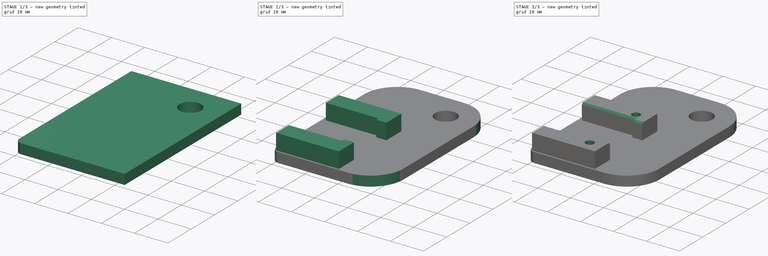
[diagram: build sequence overview — one tinted view per stage of 3, left to right]
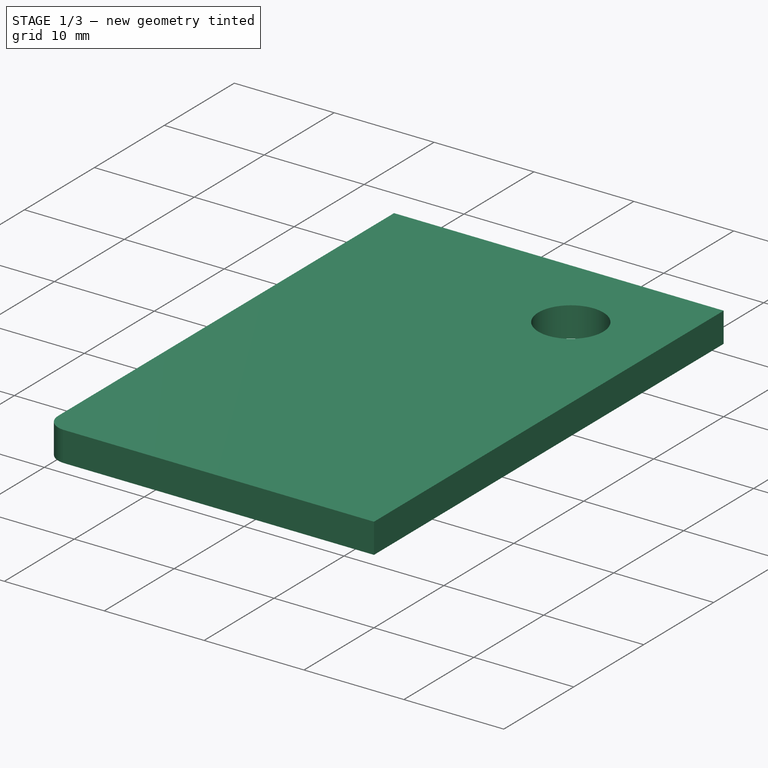
[diagram: stage 1 of 3 — iso view after this stage's code; geometry added in this stage tinted green]
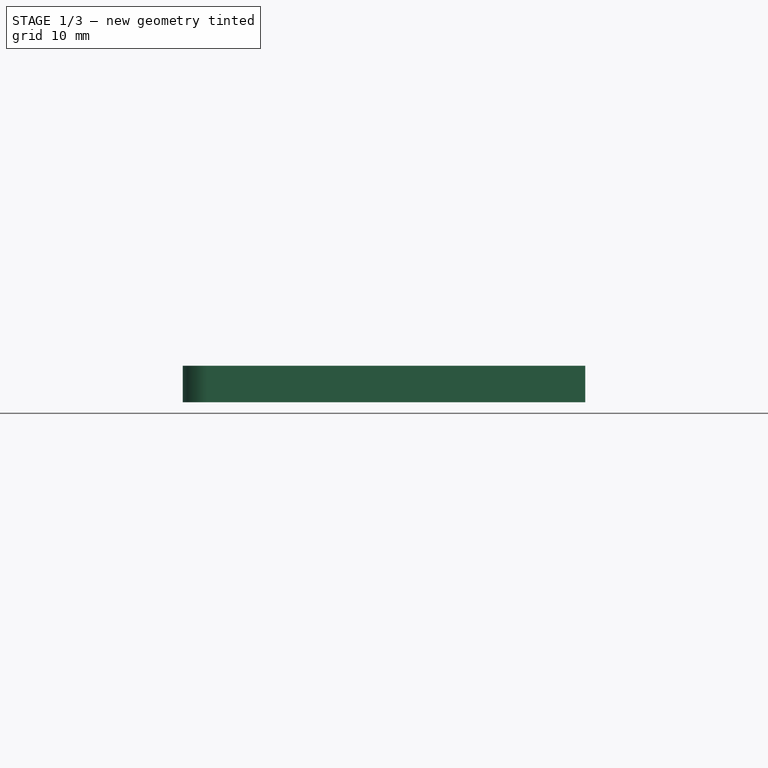
[diagram: stage 1 of 3 — front view after this stage's code; geometry added in this stage tinted green]
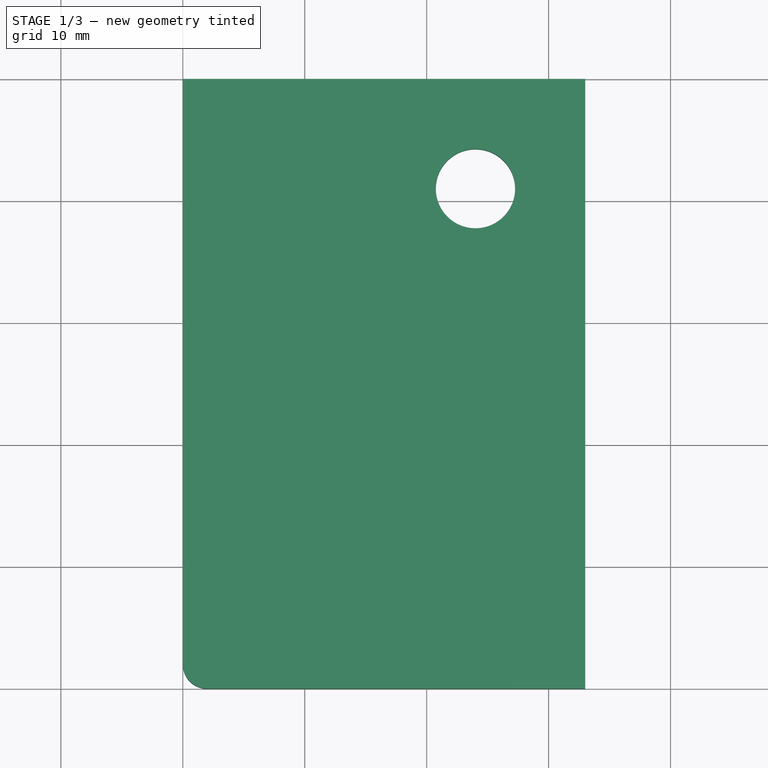
[diagram: stage 1 of 3 — top view after this stage's code; geometry added in this stage tinted green]
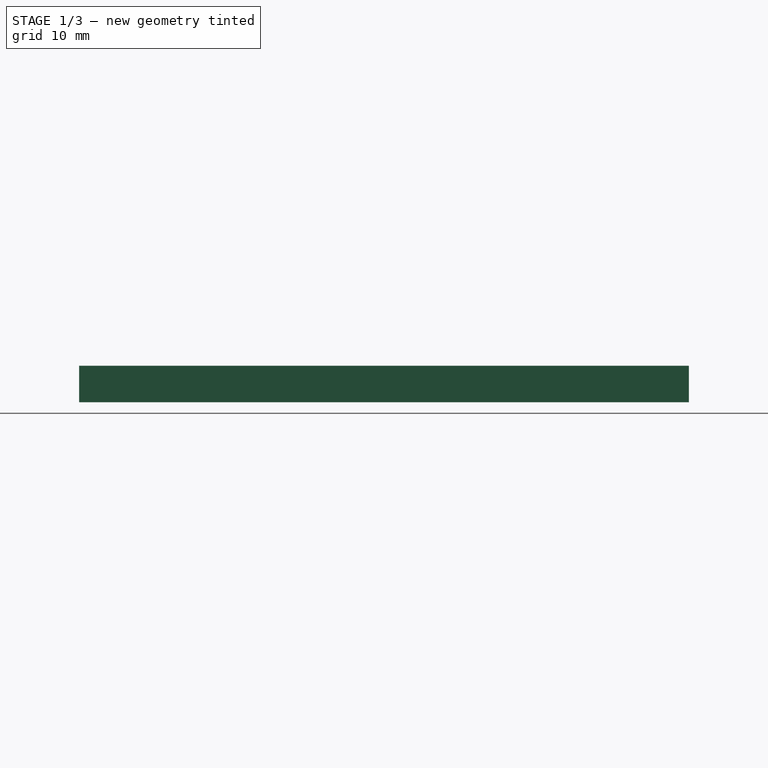
[diagram: stage 1 of 3 — right view after this stage's code; geometry added in this stage tinted green]
FCSTD DOCUMENT  (FreeCAD 0.19R24276 (Git))
Label: HU-6_holder
License: All rights reserved
LicenseURL: http://en.wikipedia.org/wiki/All_rights_reserved
objects: Sketcher::SketchObject×3, PartDesign::Pad×2, PartDesign::Fillet×2, PartDesign::Pocket×1, PartDesign::Chamfer×1, PartDesign::Body×1
note: 16 computed .brp shape members not serialized (recipe doc carries the construction recipe); baked Part::Feature solids carry a one-line shape summary decoded from their .brp

FEATURE [Sketcher::SketchObject] Sketch
  FullyConstrained = false
  MapMode = 5
  Support = -> [XY_Plane]
  sketch-geometry (38):
    g0: LineSegment StartX=0 StartY=0 StartZ=0 EndX=33 EndY=0 EndZ=0
    g1: LineSegment StartX=33 StartY=0 StartZ=0 EndX=33 EndY=50 EndZ=0
    g2: LineSegment StartX=33 StartY=50 StartZ=0 EndX=0 EndY=50 EndZ=0
    g3: LineSegment StartX=0 StartY=50 StartZ=0 EndX=0 EndY=0 EndZ=0
    g4: Circle CenterX=24 CenterY=41 CenterZ=0 NormalX=0 NormalY=0 NormalZ=1 AngleXU=0 Radius=3.25
    g5: LineSegment StartX=4 StartY=22 StartZ=0 EndX=17 EndY=22 EndZ=0
    g6: LineSegment StartX=17 StartY=22 StartZ=0 EndX=17 EndY=6 EndZ=0
    g7: LineSegment StartX=17 StartY=6 StartZ=0 EndX=4 EndY=6 EndZ=0
    g8: LineSegment StartX=4 StartY=6 StartZ=0 EndX=4 EndY=22 EndZ=0
    g9: LineSegment StartX=4 StartY=22 StartZ=0 EndX=1 EndY=22 EndZ=0
    g10: LineSegment StartX=1 StartY=22 StartZ=0 EndX=1 EndY=6 EndZ=0
    g11: LineSegment StartX=1 StartY=6 StartZ=0 EndX=4 EndY=6 EndZ=0
    g12: LineSegment StartX=4 StartY=6 StartZ=0 EndX=4 EndY=22 EndZ=0
    g13: LineSegment StartX=17 StartY=22 StartZ=0 EndX=1 EndY=22 EndZ=0
    g14: LineSegment StartX=1 StartY=22 StartZ=0 EndX=1 EndY=27.2518 EndZ=0
    g15: LineSegment StartX=1 StartY=27.2518 StartZ=0 EndX=17 EndY=27.2518 EndZ=0
    g16: LineSegment StartX=17 StartY=27.2518 StartZ=0 EndX=17 EndY=22 EndZ=0
    g17: LineSegment StartX=1 StartY=6 StartZ=0 EndX=17 EndY=6 EndZ=0
    g18: LineSegment StartX=17 StartY=6 StartZ=0 EndX=17 EndY=0.748163 EndZ=0
    g19: LineSegment StartX=17 StartY=0.748163 StartZ=0 EndX=1 EndY=0.748163 EndZ=0
    g20: LineSegment StartX=1 StartY=0.748163 StartZ=0 EndX=1 EndY=6 EndZ=0
    g21: LineSegment StartX=17 StartY=22 StartZ=0 EndX=12.5 EndY=22 EndZ=0
    g22: LineSegment StartX=12.5 StartY=22 StartZ=0 EndX=12.5 EndY=6 EndZ=0
    g23: LineSegment StartX=12.5 StartY=6 StartZ=0 EndX=17 EndY=6 EndZ=0
    g24: LineSegment StartX=17 StartY=6 StartZ=0 EndX=17 EndY=22 EndZ=0
    g25: Circle CenterX=16 CenterY=24 CenterZ=0 NormalX=0 NormalY=0 NormalZ=1 AngleXU=0 Radius=1.25
    g26: Circle CenterX=16 CenterY=4 CenterZ=0 NormalX=0 NormalY=0 NormalZ=1 AngleXU=0 Radius=1.25
    g27: Circle CenterX=16 CenterY=24 CenterZ=0 NormalX=0 NormalY=0 NormalZ=1 AngleXU=0 Radius=3.5
    g28: Circle CenterX=16 CenterY=4 CenterZ=0 NormalX=0 NormalY=0 NormalZ=1 AngleXU=0 Radius=3.5
    g29: LineSegment StartX=17 StartY=22 StartZ=0 EndX=20 EndY=22 EndZ=0
    g30: LineSegment StartX=20 StartY=22 StartZ=0 EndX=20 EndY=27.2518 EndZ=0
    g31: LineSegment StartX=20 StartY=27.2518 StartZ=0 EndX=17 EndY=27.2518 EndZ=0
    g32: LineSegment StartX=17 StartY=27.2518 StartZ=0 EndX=17 EndY=22 EndZ=0
    g33: LineSegment StartX=17 StartY=0.748163 StartZ=0 EndX=20 EndY=0.748163 EndZ=0
    g34: LineSegment StartX=20 StartY=0.748163 StartZ=0 EndX=20 EndY=6 EndZ=0
    g35: LineSegment StartX=20 StartY=6 StartZ=0 EndX=17 EndY=6 EndZ=0
    g36: LineSegment StartX=17 StartY=6 StartZ=0 EndX=17 EndY=0.748163 EndZ=0
    g37: Circle CenterX=24 CenterY=41 CenterZ=0 NormalX=0 NormalY=0 NormalZ=1 AngleXU=0 Radius=9
  constraints (103):
    c: Coincident(g0,g1)
    c: Coincident(g1,g2)
    c: Coincident(g2,g3)
    c: Coincident(g3,g0)
    c: Horizontal(g0)
    c: Horizontal(g2)
    c: Vertical(g1)
    c: Vertical(g3)
    c: Coincident(g0,g-1)
    c: Coincident(g5,g6)
    c: Coincident(g6,g7)
    c: Coincident(g7,g8)
    c: Coincident(g8,g5)
    c: Horizontal(g5)
    c: Horizontal(g7)
    c: Vertical(g6)
    c: Vertical(g8)
    c: DistanceY(g6,g6) = 16
    c: DistanceX(g7,g7) = 13
    c: DistanceY(g6,g4) = 35
    c: DistanceX(g6,g4) = 7
    c: Coincident(g9,g10)
    c: Coincident(g10,g11)
    c: Coincident(g11,g12)
    c: Coincident(g12,g9)
    c: Horizontal(g9)
    c: Horizontal(g11)
    c: Vertical(g10)
    c: Vertical(g12)
    c: Coincident(g9,g5)
    c: Horizontal(g10,g7)
    c: DistanceX(g9,g9) = 3
    c: Coincident(g13,g14)
    c: Coincident(g14,g15)
    c: Coincident(g15,g16)
    c: Coincident(g16,g13)
    c: Horizontal(g13)
    c: Horizontal(g15)
    c: Vertical(g14)
    c: Vertical(g16)
    c: Coincident(g13,g5)
    c: Vertical(g13,g9)
    c: Coincident(g17,g18)
    c: Coincident(g18,g19)
    c: Coincident(g19,g20)
    c: Coincident(g20,g17)
    c: Horizontal(g17)
    c: Horizontal(g19)
    c: Vertical(g18)
    c: Vertical(g20)
    c: Coincident(g17,g10)
    c: Vertical(g17,g6)
    c: Coincident(g21,g22)
    c: Coincident(g22,g23)
    c: Coincident(g23,g24)
    c: Coincident(g24,g21)
    c: Horizontal(g21)
    c: Horizontal(g23)
    c: Vertical(g22)
    c: Vertical(g24)
    c: Coincident(g21,g5)
    c: DistanceX(g23,g23) = 4.5
    c: Horizontal(g22,g7)
    c: Vertical(g26,g25)
    c: Diameter(g25) = 2.5
    c: Equal(g25,g26)
    c: Equal(g14,g20)
    c: Coincident(g27,g25)
    c: Diameter(g27) = 7
    c: DistanceX(g25,g5) = 1
    c: DistanceY(g5,g25) = 2
    c: DistanceY(g26,g22) = 2
    c: Coincident(g28,g26)
    c: Equal(g28,g27)
    c: Coincident(g29,g30)
    c: Coincident(g30,g31)
    c: Coincident(g31,g32)
    c: Coincident(g32,g29)
    c: Horizontal(g29)
    c: Horizontal(g31)
    c: Vertical(g30)
    c: Vertical(g32)
    c: Coincident(g29,g5)
    c: Horizontal(g31,g15)
    c: DistanceX(g31,g31) = 3
    c: Coincident(g33,g34)
    c: Coincident(g34,g35)
    c: Coincident(g35,g36)
    c: Coincident(g36,g33)
    c: Horizontal(g33)
    c: Horizontal(g35)
    c: Vertical(g34)
    c: Vertical(g36)
    c: Coincident(g33,g18)
    c: Horizontal(g34,g6)
    c: Vertical(g29,g34)
    c: Coincident(g37,g4)
    c: Diameter(g37) = 18
    c: Diameter(g4) = 6.5
    c: DistanceY(g1,g1) = 50
    c: DistanceX(g0,g0) = 33
    c: DistanceY(g4,g1) = 9
    c: DistanceX(g4,g1) = 9
FEATURE [PartDesign::Pad] Pad
  Direction = (1,1,1)
  Length = 3
  Length2 = 100
  Profile = -> Sketch
  Type = 0
FEATURE [Sketcher::SketchObject] Sketch001
  AttachmentOffset = pos=(0,0,3) rot=(0,0,1;0rad)
  FullyConstrained = false
  MapMode = 5
  Placement = pos=(0,0,3) rot=(0,0,1;0rad)
  Support = -> [XY_Plane]
  sketch-geometry (57):
    g0: LineSegment StartX=0 StartY=0 StartZ=0 EndX=33 EndY=0 EndZ=0
    g1: LineSegment StartX=33 StartY=0 StartZ=0 EndX=33 EndY=50 EndZ=0
    g2: LineSegment StartX=33 StartY=50 StartZ=0 EndX=0 EndY=50 EndZ=0
    g3: LineSegment StartX=0 StartY=50 StartZ=0 EndX=0 EndY=0 EndZ=0
    g4: Circle CenterX=24 CenterY=41 CenterZ=0 NormalX=0 NormalY=0 NormalZ=1 AngleXU=0 Radius=3.25
    g5: LineSegment StartX=4 StartY=22 StartZ=0 EndX=17 EndY=22 EndZ=0
    g6: LineSegment StartX=17 StartY=22 StartZ=0 EndX=17 EndY=6 EndZ=0
    g7: LineSegment StartX=17 StartY=6 StartZ=0 EndX=4 EndY=6 EndZ=0
    g8: LineSegment StartX=4 StartY=6 StartZ=0 EndX=4 EndY=22 EndZ=0
    g9: LineSegment StartX=4 StartY=22 StartZ=0 EndX=1 EndY=22 EndZ=0
    g10: LineSegment StartX=1 StartY=22 StartZ=0 EndX=1 EndY=6 EndZ=0
    g11: LineSegment StartX=1 StartY=6 StartZ=0 EndX=4 EndY=6 EndZ=0
    g12: LineSegment StartX=4 StartY=6 StartZ=0 EndX=4 EndY=22 EndZ=0
    g13: LineSegment StartX=17 StartY=22 StartZ=0 EndX=1 EndY=22 EndZ=0
    g14: LineSegment StartX=1 StartY=22 StartZ=0 EndX=1 EndY=27.5 EndZ=0
    g15: LineSegment StartX=1 StartY=27.5 StartZ=0 EndX=17 EndY=27.5 EndZ=0
    g16: LineSegment StartX=17 StartY=27.5 StartZ=0 EndX=17 EndY=22 EndZ=0
    g17: LineSegment StartX=1 StartY=6 StartZ=0 EndX=17 EndY=6 EndZ=0
    g18: LineSegment StartX=17 StartY=6 StartZ=0 EndX=17 EndY=0.5 EndZ=0
    g19: LineSegment StartX=17 StartY=0.5 StartZ=0 EndX=1 EndY=0.5 EndZ=0
    g20: LineSegment StartX=1 StartY=0.5 StartZ=0 EndX=1 EndY=6 EndZ=0
    g21: LineSegment StartX=17 StartY=22 StartZ=0 EndX=12.5 EndY=22 EndZ=0
    g22: LineSegment StartX=12.5 StartY=22 StartZ=0 EndX=12.5 EndY=6 EndZ=0
    g23: LineSegment StartX=12.5 StartY=6 StartZ=0 EndX=17 EndY=6 EndZ=0
    g24: LineSegment StartX=17 StartY=6 StartZ=0 EndX=17 EndY=22 EndZ=0
    g25: Circle CenterX=16 CenterY=24 CenterZ=0 NormalX=0 NormalY=0 NormalZ=1 AngleXU=0 Radius=1.25
    g26: Circle CenterX=16 CenterY=4 CenterZ=0 NormalX=0 NormalY=0 NormalZ=1 AngleXU=0 Radius=1.25
    g27: Circle CenterX=16 CenterY=24 CenterZ=0 NormalX=0 NormalY=0 NormalZ=1 AngleXU=0 Radius=3.5
    g28: Circle CenterX=16 CenterY=4 CenterZ=0 NormalX=0 NormalY=0 NormalZ=1 AngleXU=0 Radius=3.5
    g29: LineSegment StartX=17 StartY=22 StartZ=0 EndX=20 EndY=22 EndZ=0
    g30: LineSegment StartX=20 StartY=22 StartZ=0 EndX=20 EndY=27.5 EndZ=0
    g31: LineSegment StartX=20 StartY=27.5 StartZ=0 EndX=17 EndY=27.5 EndZ=0
    g32: LineSegment StartX=17 StartY=27.5 StartZ=0 EndX=17 EndY=22 EndZ=0
    g33: LineSegment StartX=17 StartY=0.5 StartZ=0 EndX=20 EndY=0.5 EndZ=0
    g34: LineSegment StartX=20 StartY=0.5 StartZ=0 EndX=20 EndY=6 EndZ=0
    g35: LineSegment StartX=20 StartY=6 StartZ=0 EndX=18.8723 EndY=6 EndZ=0
    g36: LineSegment StartX=17 StartY=6 StartZ=0 EndX=17 EndY=0.5 EndZ=0
    g37: Circle CenterX=24 CenterY=41 CenterZ=0 NormalX=0 NormalY=0 NormalZ=1 AngleXU=0 Radius=9
    g38: LineSegment StartX=1 StartY=22 StartZ=0 EndX=20 EndY=22 EndZ=0
    g39: LineSegment StartX=20 StartY=22 StartZ=0 EndX=20 EndY=27.5 EndZ=0
    g40: LineSegment StartX=20 StartY=27.5 StartZ=0 EndX=1 EndY=27.5 EndZ=0
    g41: LineSegment StartX=1 StartY=27.5 StartZ=0 EndX=1 EndY=22 EndZ=0
    g42: LineSegment StartX=1 StartY=0.5 StartZ=0 EndX=1 EndY=6 EndZ=0
    g43: LineSegment StartX=1 StartY=6 StartZ=0 EndX=17 EndY=6 EndZ=0
    g44: LineSegment StartX=20 StartY=6 StartZ=0 EndX=20 EndY=0.5 EndZ=0
    g45: LineSegment StartX=20 StartY=0.5 StartZ=0 EndX=1 EndY=0.5 EndZ=0
    g46: LineSegment StartX=20 StartY=22 StartZ=0 EndX=17 EndY=22 EndZ=0
    g47: LineSegment StartX=17 StartY=22 StartZ=0 EndX=17 EndY=21 EndZ=0
    g48: LineSegment StartX=17 StartY=21 StartZ=0 EndX=20 EndY=21 EndZ=0
    g49: LineSegment StartX=20 StartY=21 StartZ=0 EndX=20 EndY=22 EndZ=0
    g50: LineSegment StartX=20 StartY=6 StartZ=0 EndX=18.8723 EndY=6 EndZ=0
    g51: LineSegment StartX=17 StartY=6 StartZ=0 EndX=17 EndY=7 EndZ=0
    g52: LineSegment StartX=17 StartY=7 StartZ=0 EndX=20 EndY=7 EndZ=0
    g53: LineSegment StartX=20 StartY=7 StartZ=0 EndX=20 EndY=6 EndZ=0
    g54: LineSegment StartX=17 StartY=22 StartZ=0 EndX=1 EndY=22 EndZ=0
    g55: LineSegment StartX=18.8723 StartY=6 StartZ=0 EndX=20 EndY=6 EndZ=0
    g56: LineSegment StartX=17 StartY=6 StartZ=0 EndX=1 EndY=6 EndZ=0
  constraints (150):
    c: Coincident(g0,g1)
    c: Coincident(g1,g2)
    c: Coincident(g2,g3)
    c: Coincident(g3,g0)
    c: Horizontal(g0)
    c: Horizontal(g2)
    c: Vertical(g1)
    c: Vertical(g3)
    c: Coincident(g0,g-1)
    c: Coincident(g5,g6)
    c: Coincident(g6,g7)
    c: Coincident(g7,g8)
    c: Coincident(g8,g5)
    c: Horizontal(g5)
    c: Horizontal(g7)
    c: Vertical(g6)
    c: Vertical(g8)
    c: DistanceY(g6,g6) = 16
    c: DistanceX(g7,g7) = 13
    c: DistanceY(g6,g4) = 35
    c: DistanceX(g6,g4) = 7
    c: Coincident(g9,g10)
    c: Coincident(g10,g11)
    c: Coincident(g11,g12)
    c: Coincident(g12,g9)
    c: Horizontal(g9)
    c: Horizontal(g11)
    c: Vertical(g10)
    c: Vertical(g12)
    c: Coincident(g9,g5)
    c: Horizontal(g10,g7)
    c: DistanceX(g9,g9) = 3
    c: Coincident(g13,g14)
    c: Coincident(g14,g15)
    c: Coincident(g15,g16)
    c: Coincident(g16,g13)
    c: Horizontal(g15)
    c: Vertical(g14)
    c: Vertical(g16)
    c: Coincident(g13,g5)
    c: Coincident(g17,g18)
    c: Coincident(g18,g19)
    c: Coincident(g19,g20)
    c: Coincident(g20,g17)
    c: Horizontal(g17)
    c: Horizontal(g19)
    c: Vertical(g18)
    c: Vertical(g20)
    c: Coincident(g17,g10)
    c: Vertical(g17,g6)
    c: Coincident(g21,g22)
    c: Coincident(g22,g23)
    c: Coincident(g23,g24)
    c: Coincident(g24,g21)
    c: Horizontal(g21)
    c: Horizontal(g23)
    c: Vertical(g22)
    c: Vertical(g24)
    c: Coincident(g21,g5)
    c: DistanceX(g23,g23) = 4.5
    c: Horizontal(g22,g7)
    c: Vertical(g26,g25)
    c: Diameter(g25) = 2.5
    c: Equal(g25,g26)
    c: Equal(g14,g20)
    c: Coincident(g27,g25)
    c: Diameter(g27) = 7
    c: DistanceX(g25,g5) = 1
    c: DistanceY(g5,g25) = 2
    c: DistanceY(g26,g22) = 2
    c: Coincident(g28,g26)
    c: Equal(g28,g27)
    c: Coincident(g29,g30)
    c: Coincident(g30,g31)
    c: Coincident(g31,g32)
    c: Coincident(g32,g29)
    c: Horizontal(g29)
    c: Horizontal(g31)
    c: Vertical(g30)
    c: Vertical(g32)
    c: Coincident(g29,g5)
    c: Horizontal(g31,g15)
    c: DistanceX(g31,g31) = 3
    c: Coincident(g33,g34)
    c: Coincident(g34,g35)
    c: Coincident(g36,g33)
    c: Horizontal(g33)
    c: Horizontal(g35)
    c: Vertical(g34)
    c: Vertical(g36)
    c: Coincident(g33,g18)
    c: Horizontal(g34,g6)
    c: Vertical(g29,g34)
    c: Coincident(g37,g4)
    c: Diameter(g37) = 18
    c: Diameter(g4) = 6.5
    c: DistanceY(g1,g1) = 50
    c: DistanceX(g0,g0) = 33
    c: DistanceY(g4,g1) = 9
    c: DistanceX(g4,g1) = 9
    c: Coincident(g39,g29)
    c: Coincident(g40,g30)
    c: Tangent(g40,g27)
    c: Coincident(g41,g40)
    c: Coincident(g41,g38)
    c: Coincident(g38,g9)
    c: Coincident(g38,g13)
    c: Coincident(g40,g14)
    c: Coincident(g39,g40)
    c: Coincident(g38,g39)
    c: Coincident(g42,g19)
    c: Coincident(g43,g42)
    c: Coincident(g44,g55)
    c: Coincident(g45,g44)
    c: Coincident(g45,g42)
    c: Coincident(g42,g10)
    c: Coincident(g55,g34)
    c: Coincident(g44,g33)
    c: Coincident(g46,g47)
    c: Coincident(g47,g48)
    c: Coincident(g48,g49)
    c: Coincident(g49,g46)
    c: Horizontal(g46)
    c: Horizontal(g48)
    c: Vertical(g47)
    c: Vertical(g49)
    c: Coincident(g46,g38)
    c: Coincident(g51,g52)
    c: Coincident(g52,g53)
    c: Coincident(g53,g50)
    c: Horizontal(g50)
    c: Horizontal(g52)
    c: Vertical(g51)
    c: Vertical(g53)
    c: Coincident(g50,g55)
    c: DistanceY(g49,g49) = 1
    c: DistanceY(g53,g53) = 1
    c: Vertical(g46,g5)
    c: Vertical(g51,g6)
    c: Coincident(g54,g41)
    c: PointOnObject(g35,g28)
    c: PointOnObject(g43,g6)
    c: PointOnObject(g55,g28)
    c: Tangent(g43,g55)
    c: PointOnObject(g50,g28)
    c: Coincident(g56,g51)
    c: Coincident(g56,g42)
    c: Horizontal(g51,g44)
    c: Vertical(g54,g47)
    c: Horizontal(g54,g39)
FEATURE [PartDesign::Fillet] Fillet
  Base = -> Pad [Edge1]
  BaseFeature = -> Pad
  Radius = 2
  SupportTransform = false
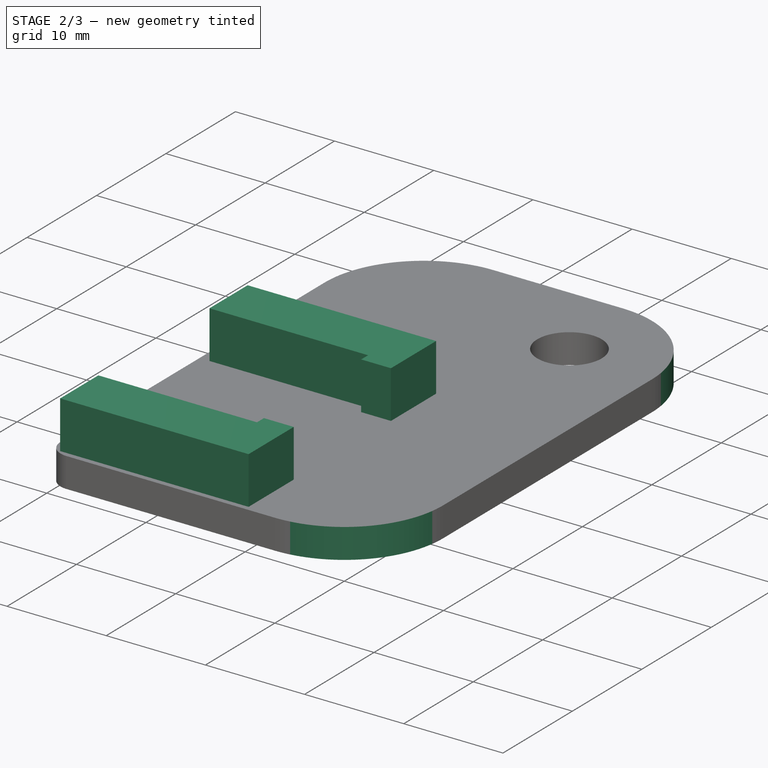
[diagram: stage 2 of 3 — iso view after this stage's code; geometry added in this stage tinted green]
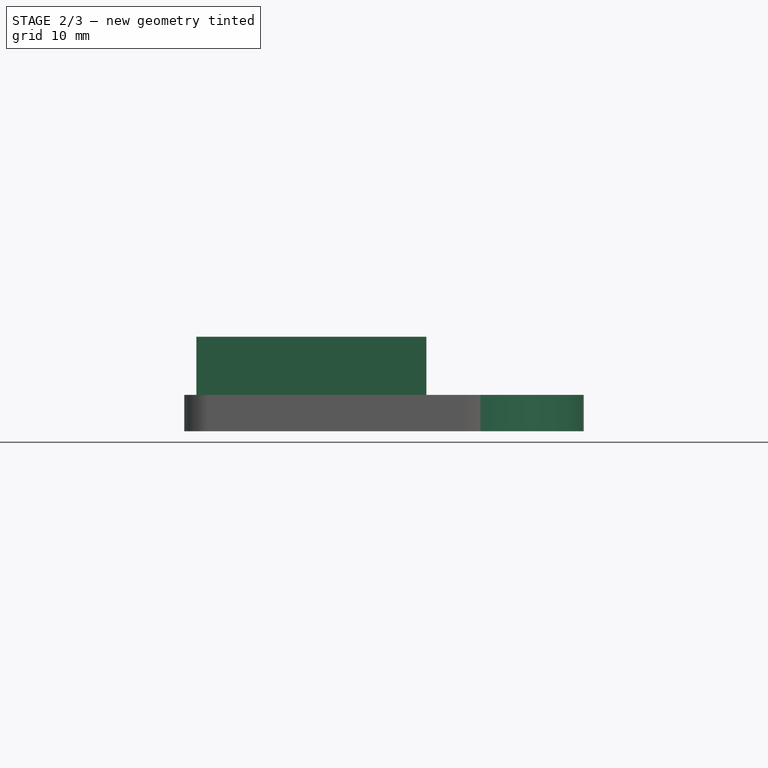
[diagram: stage 2 of 3 — front view after this stage's code; geometry added in this stage tinted green]
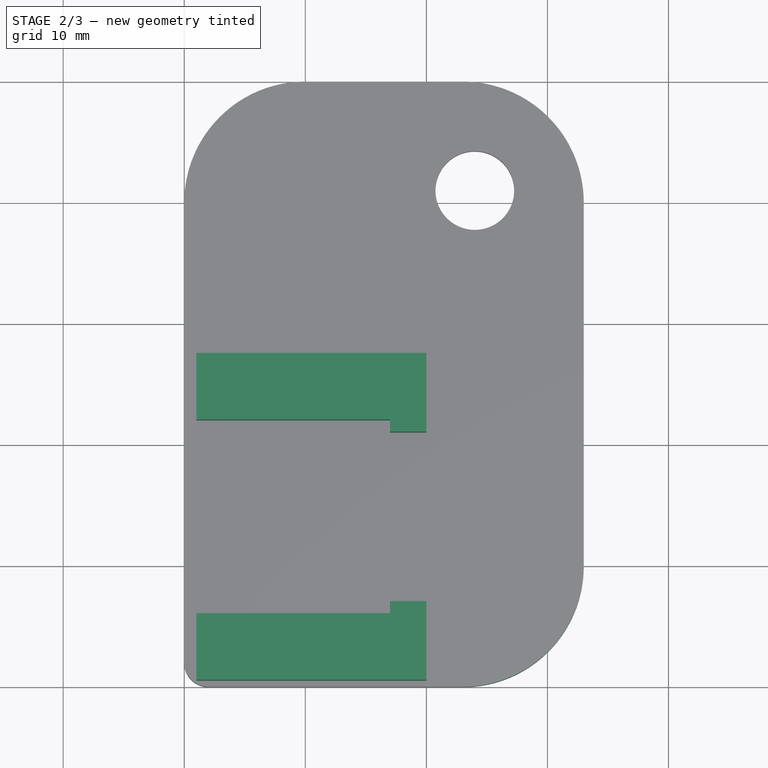
[diagram: stage 2 of 3 — top view after this stage's code; geometry added in this stage tinted green]
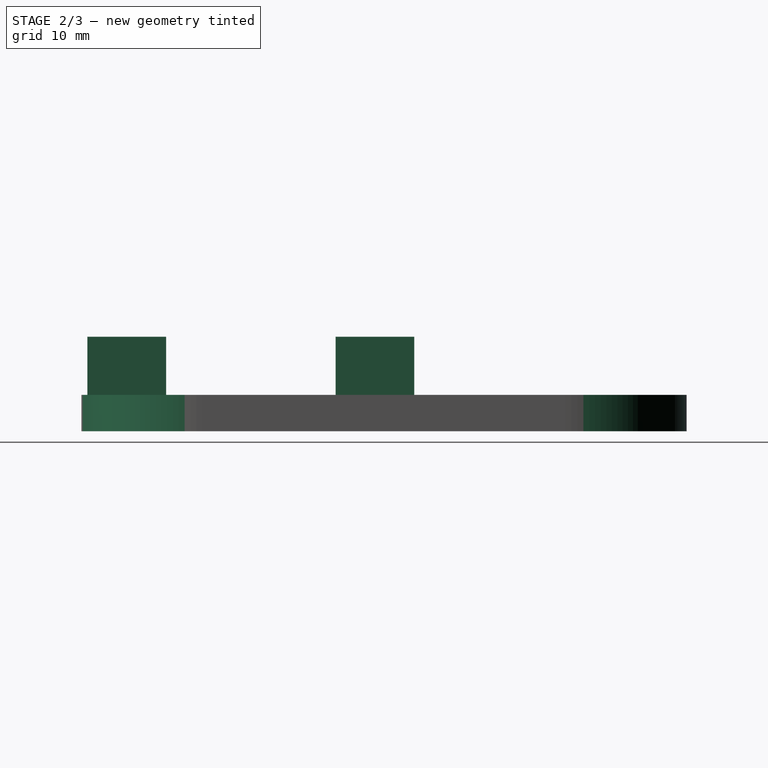
[diagram: stage 2 of 3 — right view after this stage's code; geometry added in this stage tinted green]
FEATURE [PartDesign::Fillet] Fillet001
  Base = -> Fillet [Edge3,Edge17,Edge12]
  BaseFeature = -> Fillet
  Radius = 10
  SupportTransform = false
FEATURE [PartDesign::Pad] Pad001
  BaseFeature = -> Fillet001
  Direction = (1,1,1)
  Length = 4.8
  Length2 = 100
  Profile = -> Sketch001
  Type = 0
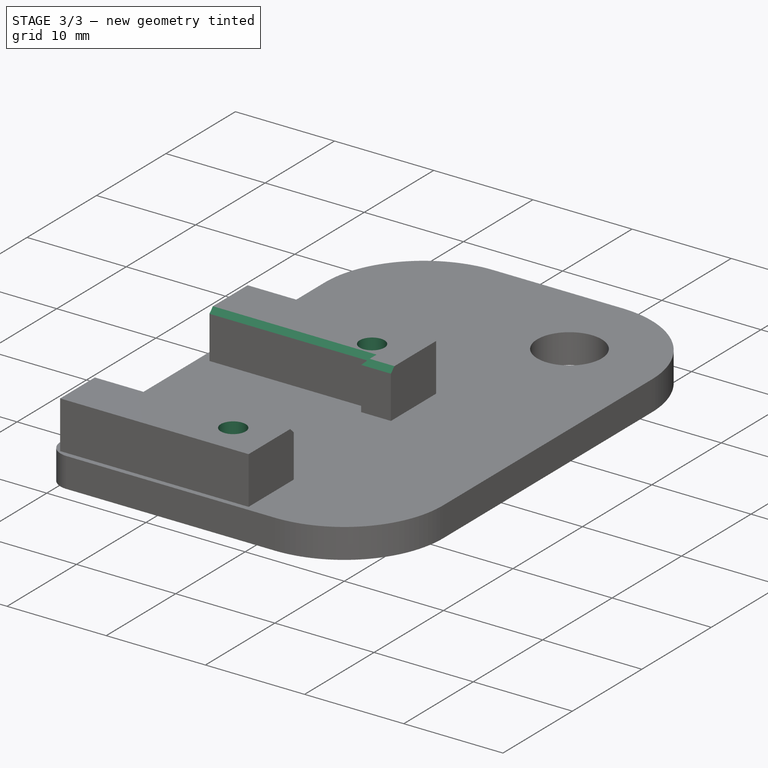
[diagram: stage 3 of 3 — iso view after this stage's code; geometry added in this stage tinted green]
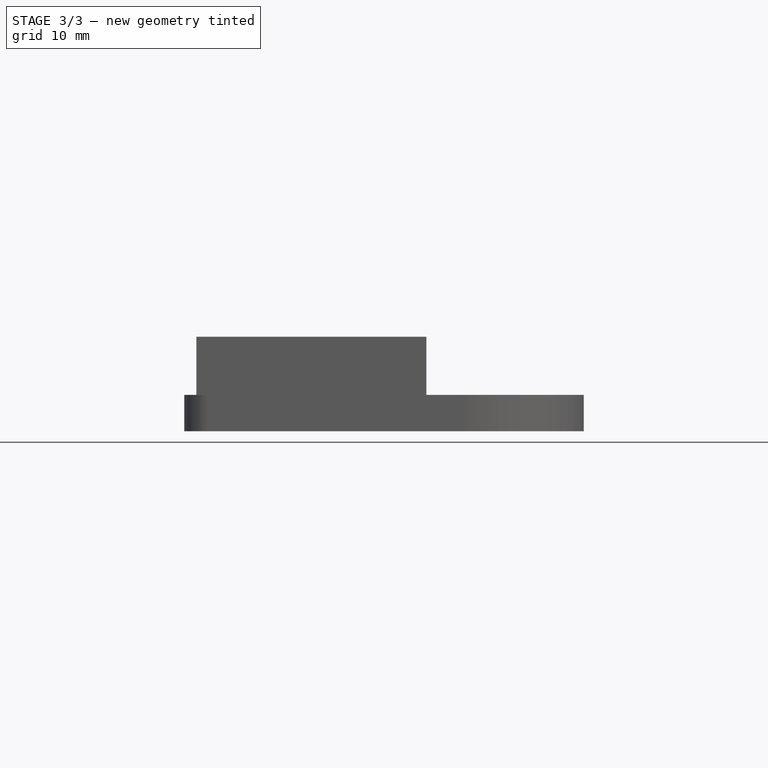
[diagram: stage 3 of 3 — front view after this stage's code; geometry added in this stage tinted green]
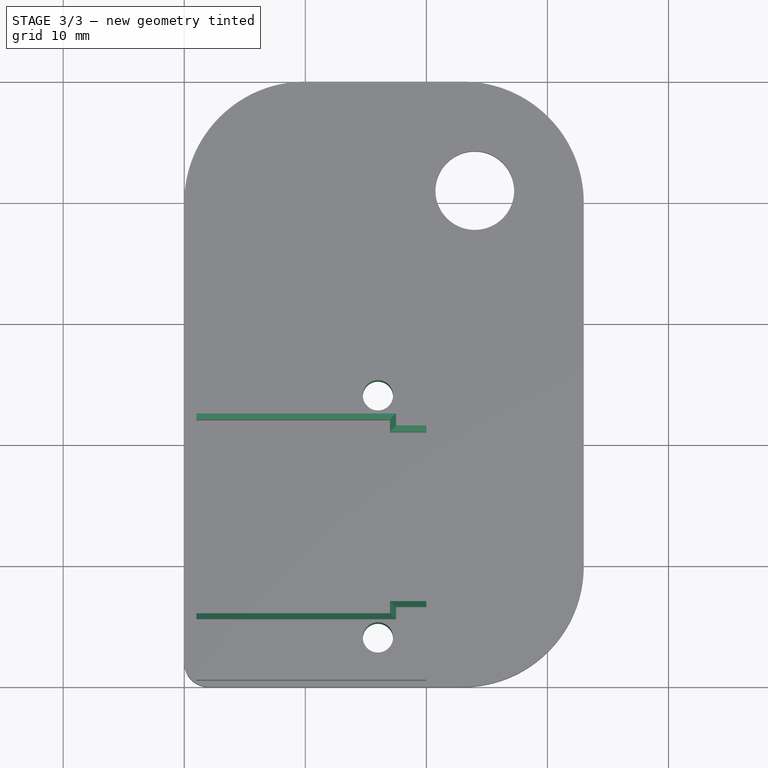
[diagram: stage 3 of 3 — top view after this stage's code; geometry added in this stage tinted green]
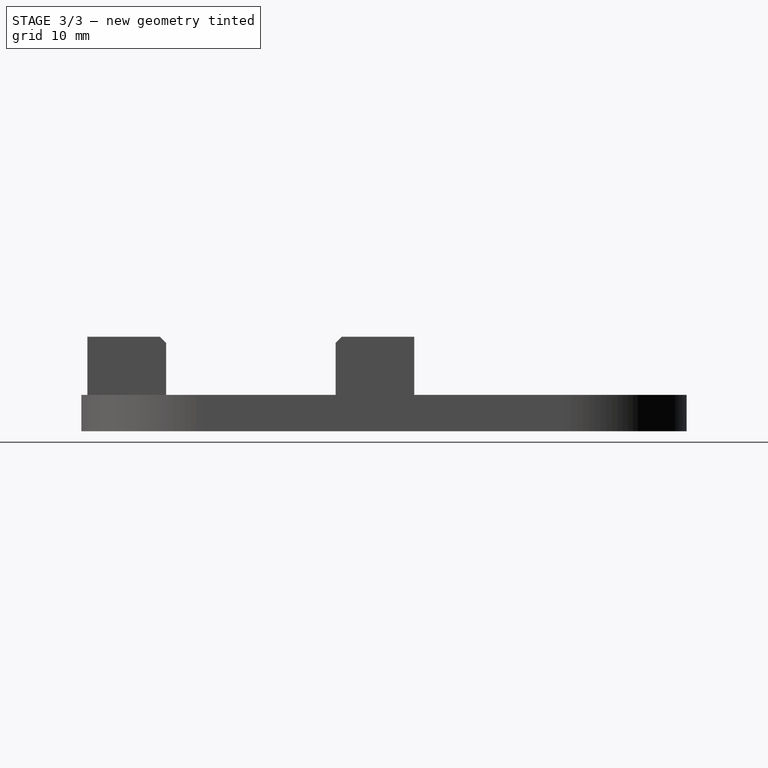
[diagram: stage 3 of 3 — right view after this stage's code; geometry added in this stage tinted green]
FEATURE [Sketcher::SketchObject] Sketch002
  AttachmentOffset = pos=(0,0,8) rot=(0,0,1;0rad)
  FullyConstrained = false
  MapMode = 5
  Placement = pos=(0,0,8) rot=(0,0,1;0rad)
  Support = -> [XY_Plane]
  sketch-geometry (57):
    g0: LineSegment StartX=0 StartY=0 StartZ=0 EndX=33 EndY=0 EndZ=0
    g1: LineSegment StartX=33 StartY=0 StartZ=0 EndX=33 EndY=50 EndZ=0
    g2: LineSegment StartX=33 StartY=50 StartZ=0 EndX=0 EndY=50 EndZ=0
    g3: LineSegment StartX=0 StartY=50 StartZ=0 EndX=0 EndY=0 EndZ=0
    g4: Circle CenterX=24 CenterY=41 CenterZ=0 NormalX=0 NormalY=0 NormalZ=1 AngleXU=0 Radius=3.25
    g5: LineSegment StartX=4 StartY=22 StartZ=0 EndX=17 EndY=22 EndZ=0
    g6: LineSegment StartX=17 StartY=22 StartZ=0 EndX=17 EndY=6 EndZ=0
    g7: LineSegment StartX=17 StartY=6 StartZ=0 EndX=4 EndY=6 EndZ=0
    g8: LineSegment StartX=4 StartY=6 StartZ=0 EndX=4 EndY=22 EndZ=0
    g9: LineSegment StartX=4 StartY=22 StartZ=0 EndX=1 EndY=22 EndZ=0
    g10: LineSegment StartX=1 StartY=22 StartZ=0 EndX=1 EndY=6 EndZ=0
    g11: LineSegment StartX=1 StartY=6 StartZ=0 EndX=4 EndY=6 EndZ=0
    g12: LineSegment StartX=4 StartY=6 StartZ=0 EndX=4 EndY=22 EndZ=0
    g13: LineSegment StartX=17 StartY=22 StartZ=0 EndX=1 EndY=22 EndZ=0
    g14: LineSegment StartX=1 StartY=22 StartZ=0 EndX=1 EndY=27.5 EndZ=0
    g15: LineSegment StartX=1 StartY=27.5 StartZ=0 EndX=17 EndY=27.5 EndZ=0
    g16: LineSegment StartX=17 StartY=27.5 StartZ=0 EndX=17 EndY=22 EndZ=0
    g17: LineSegment StartX=1 StartY=6 StartZ=0 EndX=17 EndY=6 EndZ=0
    g18: LineSegment StartX=17 StartY=6 StartZ=0 EndX=17 EndY=0.5 EndZ=0
    g19: LineSegment StartX=17 StartY=0.5 StartZ=0 EndX=1 EndY=0.5 EndZ=0
    g20: LineSegment StartX=1 StartY=0.5 StartZ=0 EndX=1 EndY=6 EndZ=0
    g21: LineSegment StartX=17 StartY=22 StartZ=0 EndX=12.5 EndY=22 EndZ=0
    g22: LineSegment StartX=12.5 StartY=22 StartZ=0 EndX=12.5 EndY=6 EndZ=0
    g23: LineSegment StartX=12.5 StartY=6 StartZ=0 EndX=17 EndY=6 EndZ=0
    g24: LineSegment StartX=17 StartY=6 StartZ=0 EndX=17 EndY=22 EndZ=0
    g25: Circle CenterX=16 CenterY=24 CenterZ=0 NormalX=0 NormalY=0 NormalZ=1 AngleXU=0 Radius=1.25
    g26: Circle CenterX=16 CenterY=4 CenterZ=0 NormalX=0 NormalY=0 NormalZ=1 AngleXU=0 Radius=1.25
    g27: Circle CenterX=16 CenterY=24 CenterZ=0 NormalX=0 NormalY=0 NormalZ=1 AngleXU=0 Radius=3.5
    g28: Circle CenterX=16 CenterY=4 CenterZ=0 NormalX=0 NormalY=0 NormalZ=1 AngleXU=0 Radius=3.5
    g29: LineSegment StartX=17 StartY=22 StartZ=0 EndX=20 EndY=22 EndZ=0
    g30: LineSegment StartX=20 StartY=22 StartZ=0 EndX=20 EndY=27.5 EndZ=0
    g31: LineSegment StartX=20 StartY=27.5 StartZ=0 EndX=17 EndY=27.5 EndZ=0
    g32: LineSegment StartX=17 StartY=27.5 StartZ=0 EndX=17 EndY=22 EndZ=0
    g33: LineSegment StartX=17 StartY=0.5 StartZ=0 EndX=20 EndY=0.5 EndZ=0
    g34: LineSegment StartX=20 StartY=0.5 StartZ=0 EndX=20 EndY=6 EndZ=0
    g35: LineSegment StartX=20 StartY=6 StartZ=0 EndX=18.8723 EndY=6 EndZ=0
    g36: LineSegment StartX=17 StartY=6 StartZ=0 EndX=17 EndY=0.5 EndZ=0
    g37: Circle CenterX=24 CenterY=41 CenterZ=0 NormalX=0 NormalY=0 NormalZ=1 AngleXU=0 Radius=9
    g38: LineSegment StartX=1 StartY=22 StartZ=0 EndX=20 EndY=22 EndZ=0
    g39: LineSegment StartX=20 StartY=22 StartZ=0 EndX=20 EndY=27.5 EndZ=0
    g40: LineSegment StartX=20 StartY=27.5 StartZ=0 EndX=1 EndY=27.5 EndZ=0
    g41: LineSegment StartX=1 StartY=27.5 StartZ=0 EndX=1 EndY=22 EndZ=0
    g42: LineSegment StartX=1 StartY=0.5 StartZ=0 EndX=1 EndY=6 EndZ=0
    g43: LineSegment StartX=1 StartY=6 StartZ=0 EndX=17 EndY=6 EndZ=0
    g44: LineSegment StartX=20 StartY=6 StartZ=0 EndX=20 EndY=0.5 EndZ=0
    g45: LineSegment StartX=20 StartY=0.5 StartZ=0 EndX=1 EndY=0.5 EndZ=0
    g46: LineSegment StartX=20 StartY=22 StartZ=0 EndX=17 EndY=22 EndZ=0
    g47: LineSegment StartX=17 StartY=22 StartZ=0 EndX=17 EndY=21 EndZ=0
    g48: LineSegment StartX=17 StartY=21 StartZ=0 EndX=20 EndY=21 EndZ=0
    g49: LineSegment StartX=20 StartY=21 StartZ=0 EndX=20 EndY=22 EndZ=0
    g50: LineSegment StartX=20 StartY=6 StartZ=0 EndX=18.8723 EndY=6 EndZ=0
    g51: LineSegment StartX=17 StartY=6 StartZ=0 EndX=17 EndY=7 EndZ=0
    g52: LineSegment StartX=17 StartY=7 StartZ=0 EndX=20 EndY=7 EndZ=0
    g53: LineSegment StartX=20 StartY=7 StartZ=0 EndX=20 EndY=6 EndZ=0
    g54: LineSegment StartX=17 StartY=22 StartZ=0 EndX=1 EndY=22 EndZ=0
    g55: LineSegment StartX=18.8723 StartY=6 StartZ=0 EndX=20 EndY=6 EndZ=0
    g56: LineSegment StartX=17 StartY=6 StartZ=0 EndX=1 EndY=6 EndZ=0
  constraints (150):
    c: Coincident(g0,g1)
    c: Coincident(g1,g2)
    c: Coincident(g2,g3)
    c: Coincident(g3,g0)
    c: Horizontal(g0)
    c: Horizontal(g2)
    c: Vertical(g1)
    c: Vertical(g3)
    c: Coincident(g0,g-1)
    c: Coincident(g5,g6)
    c: Coincident(g6,g7)
    c: Coincident(g7,g8)
    c: Coincident(g8,g5)
    c: Horizontal(g5)
    c: Horizontal(g7)
    c: Vertical(g6)
    c: Vertical(g8)
    c: DistanceY(g6,g6) = 16
    c: DistanceX(g7,g7) = 13
    c: DistanceY(g6,g4) = 35
    c: DistanceX(g6,g4) = 7
    c: Coincident(g9,g10)
    c: Coincident(g10,g11)
    c: Coincident(g11,g12)
    c: Coincident(g12,g9)
    c: Horizontal(g9)
    c: Horizontal(g11)
    c: Vertical(g10)
    c: Vertical(g12)
    c: Coincident(g9,g5)
    c: Horizontal(g10,g7)
    c: DistanceX(g9,g9) = 3
    c: Coincident(g13,g14)
    c: Coincident(g14,g15)
    c: Coincident(g15,g16)
    c: Coincident(g16,g13)
    c: Horizontal(g15)
    c: Vertical(g14)
    c: Vertical(g16)
    c: Coincident(g13,g5)
    c: Coincident(g17,g18)
    c: Coincident(g18,g19)
    c: Coincident(g19,g20)
    c: Coincident(g20,g17)
    c: Horizontal(g17)
    c: Horizontal(g19)
    c: Vertical(g18)
    c: Vertical(g20)
    c: Coincident(g17,g10)
    c: Vertical(g17,g6)
    c: Coincident(g21,g22)
    c: Coincident(g22,g23)
    c: Coincident(g23,g24)
    c: Coincident(g24,g21)
    c: Horizontal(g21)
    c: Horizontal(g23)
    c: Vertical(g22)
    c: Vertical(g24)
    c: Coincident(g21,g5)
    c: DistanceX(g23,g23) = 4.5
    c: Horizontal(g22,g7)
    c: Vertical(g26,g25)
    c: Diameter(g25) = 2.5
    c: Equal(g25,g26)
    c: Equal(g14,g20)
    c: Coincident(g27,g25)
    c: Diameter(g27) = 7
    c: DistanceX(g25,g5) = 1
    c: DistanceY(g5,g25) = 2
    c: DistanceY(g26,g22) = 2
    c: Coincident(g28,g26)
    c: Equal(g28,g27)
    c: Coincident(g29,g30)
    c: Coincident(g30,g31)
    c: Coincident(g31,g32)
    c: Coincident(g32,g29)
    c: Horizontal(g29)
    c: Horizontal(g31)
    c: Vertical(g30)
    c: Vertical(g32)
    c: Coincident(g29,g5)
    c: Horizontal(g31,g15)
    c: DistanceX(g31,g31) = 3
    c: Coincident(g33,g34)
    c: Coincident(g34,g35)
    c: Coincident(g36,g33)
    c: Horizontal(g33)
    c: Horizontal(g35)
    c: Vertical(g34)
    c: Vertical(g36)
    c: Coincident(g33,g18)
    c: Horizontal(g34,g6)
    c: Vertical(g29,g34)
    c: Coincident(g37,g4)
    c: Diameter(g37) = 18
    c: Diameter(g4) = 6.5
    c: DistanceY(g1,g1) = 50
    c: DistanceX(g0,g0) = 33
    c: DistanceY(g4,g1) = 9
    c: DistanceX(g4,g1) = 9
    c: Coincident(g39,g29)
    c: Coincident(g40,g30)
    c: Tangent(g40,g27)
    c: Coincident(g41,g40)
    c: Coincident(g41,g38)
    c: Coincident(g38,g9)
    c: Coincident(g38,g13)
    c: Coincident(g40,g14)
    c: Coincident(g39,g40)
    c: Coincident(g38,g39)
    c: Coincident(g42,g19)
    c: Coincident(g43,g42)
    c: Coincident(g44,g55)
    c: Coincident(g45,g44)
    c: Coincident(g45,g42)
    c: Coincident(g42,g10)
    c: Coincident(g55,g34)
    c: Coincident(g44,g33)
    c: Coincident(g46,g47)
    c: Coincident(g47,g48)
    c: Coincident(g48,g49)
    c: Coincident(g49,g46)
    c: Horizontal(g46)
    c: Horizontal(g48)
    c: Vertical(g47)
    c: Vertical(g49)
    c: Coincident(g46,g38)
    c: Coincident(g51,g52)
    c: Coincident(g52,g53)
    c: Coincident(g53,g50)
    c: Horizontal(g50)
    c: Horizontal(g52)
    c: Vertical(g51)
    c: Vertical(g53)
    c: Coincident(g50,g55)
    c: DistanceY(g49,g49) = 1
    c: DistanceY(g53,g53) = 1
    c: Vertical(g46,g5)
    c: Vertical(g51,g6)
    c: Coincident(g54,g41)
    c: PointOnObject(g35,g28)
    c: PointOnObject(g43,g6)
    c: PointOnObject(g55,g28)
    c: Tangent(g43,g55)
    c: PointOnObject(g50,g28)
    c: Coincident(g56,g51)
    c: Coincident(g56,g42)
    c: Horizontal(g51,g44)
    c: Vertical(g54,g47)
    c: Horizontal(g54,g39)
FEATURE [PartDesign::Pocket] Pocket
  BaseFeature = -> Pad001
  Length = 5
  Length2 = 100
  Profile = -> Sketch002
  Type = 1
FEATURE [PartDesign::Chamfer] Chamfer
  Angle = 45
  Base = -> Pocket [Edge75,Edge50,Edge64,Edge61,Edge60,Edge66]
  BaseFeature = -> Pocket
  ChamferType = 0
  FlipDirection = false
  Size = 0.5
  Size2 = 1
  SupportTransform = false
FEATURE [PartDesign::Body] Body
  Group = -> [Sketch,Pad,Sketch001,Fillet,Fillet001,Pad001,Sketch002,Pocket,Chamfer]
  Origin = -> Origin
  Tip = -> Chamfer
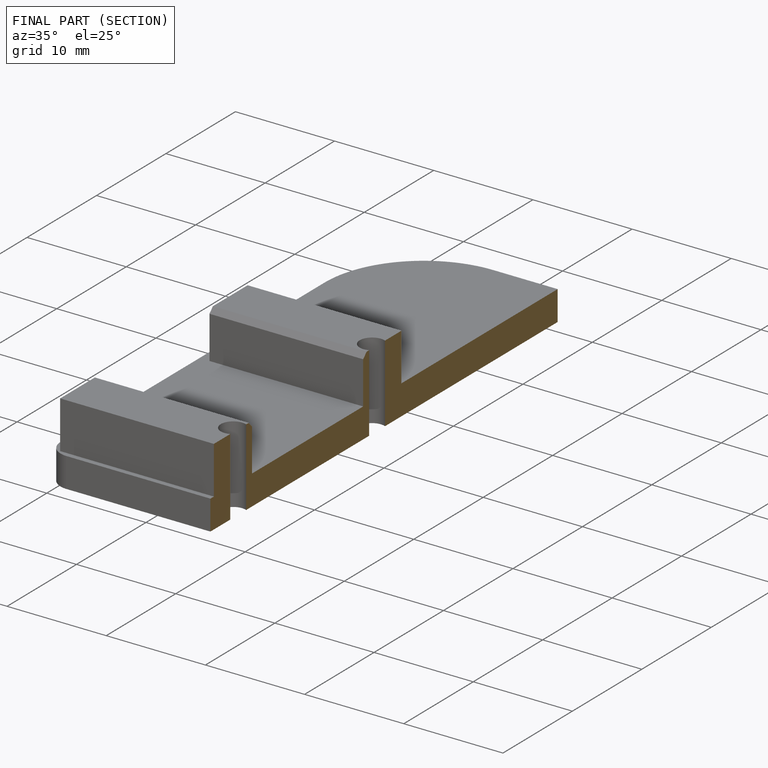
[diagram: finished part — half-section view (interior)]
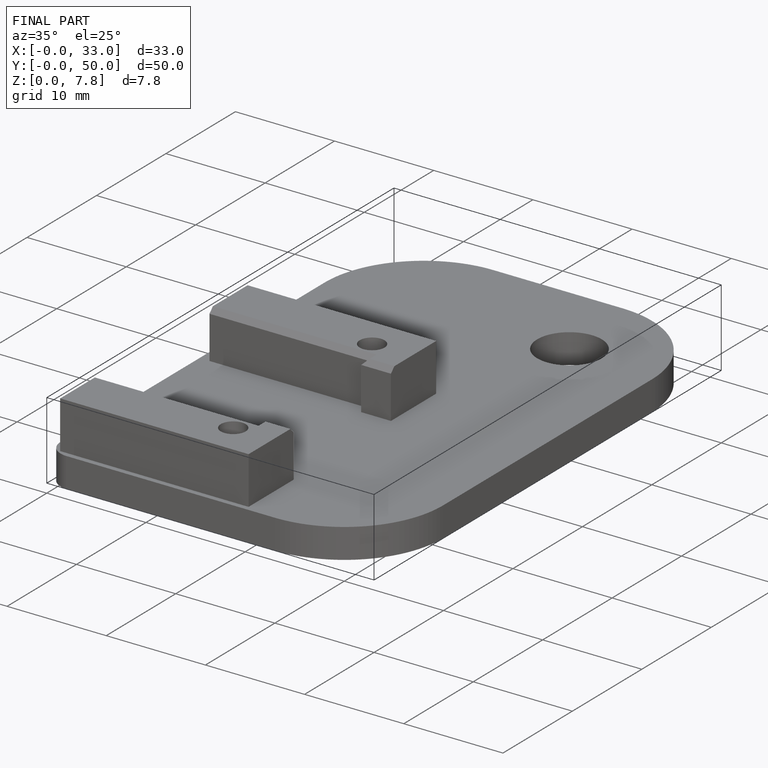
[diagram: finished part — iso view with bounding-box wireframe]
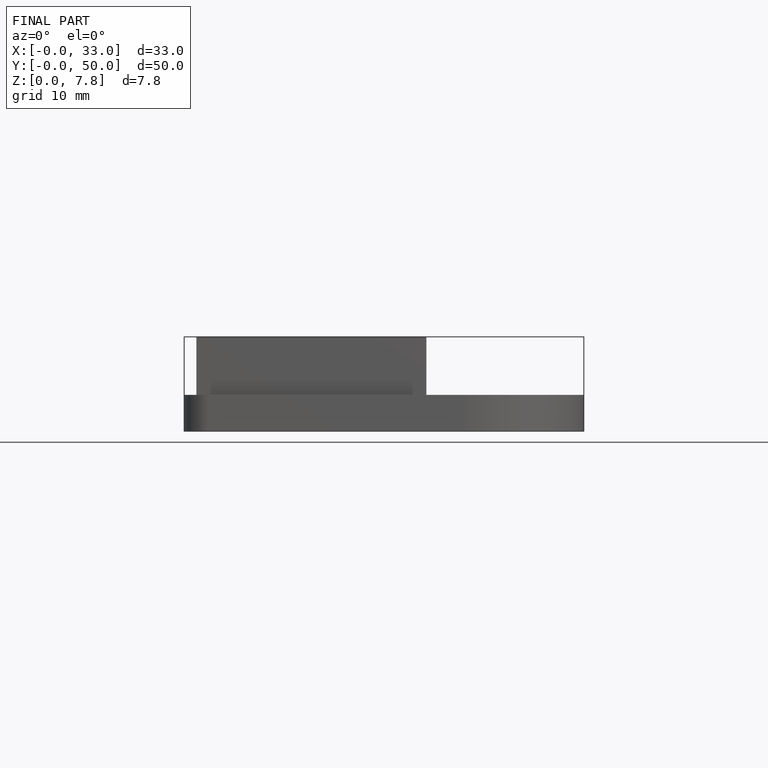
[diagram: finished part — front view with bounding-box wireframe]
